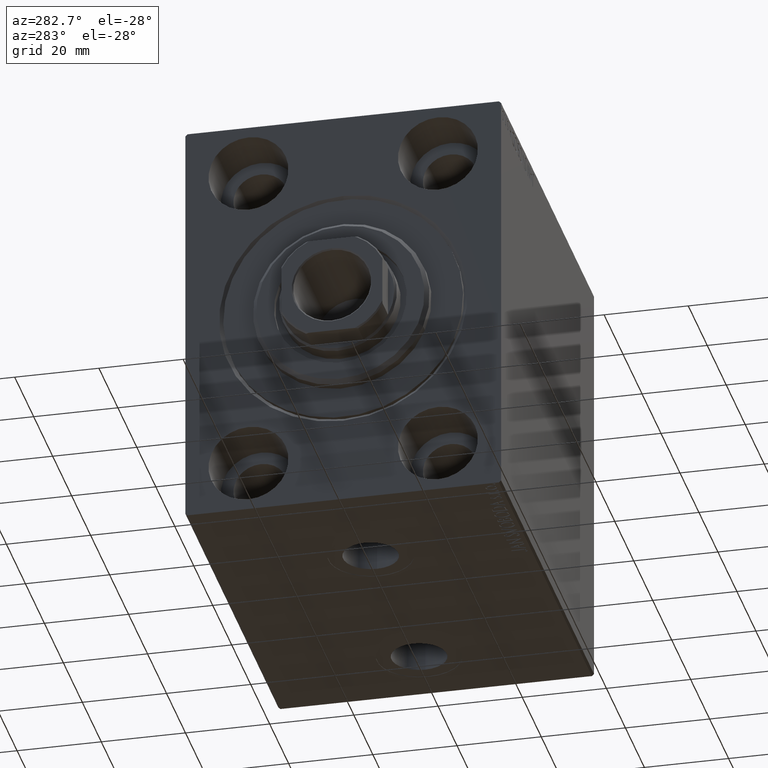
[diagram: clean part render]
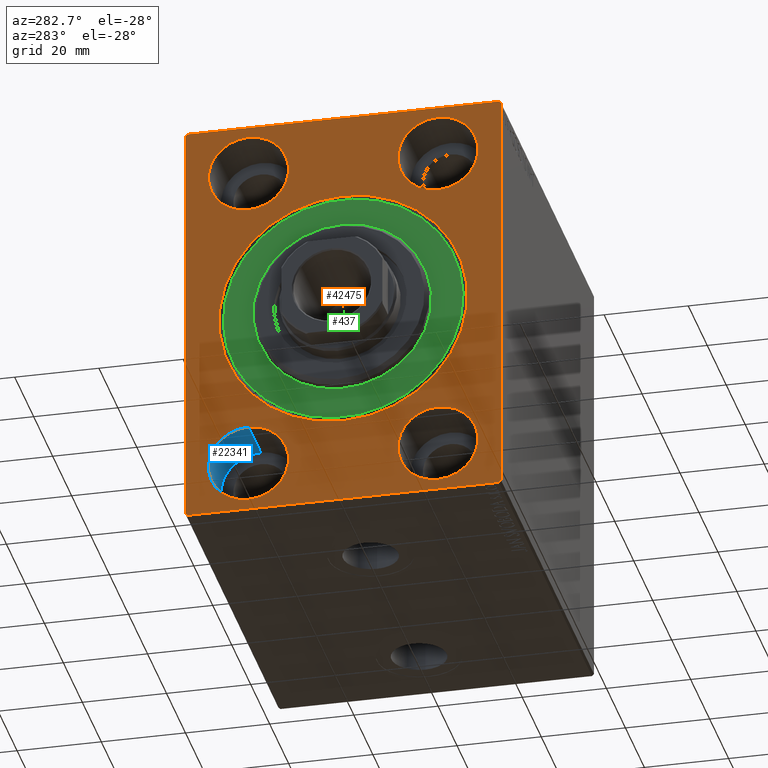
[diagram: same view with three faces highlighted in distinct colors, each labeled with its STEP entity id]
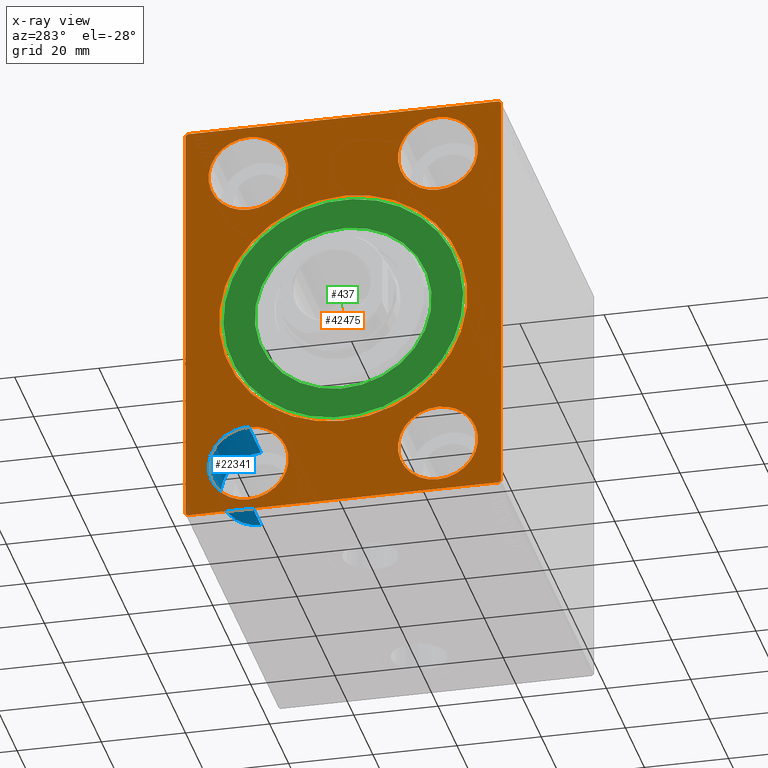
[diagram: x-ray of the same camera — body ghosted, the three highlighted faces saturated]
A machine part, auxiliary view with three faces highlighted in distinct colors.
The next image is the same camera in x-ray (body ghosted, the three faces saturated) — at least one of them is partly hidden behind the body in this view.
Their STEP definitions:

[orange] entity #42475 — the highlighted planar face has unit normal (1, 0, 0).
#120 = CARTESIAN_POINT ( 'NONE',  ( 0.000000000000000000, 22.49999999999999645, -37.99999999999999289 ) ) ;
#312 = CARTESIAN_POINT ( 'NONE',  ( 0.000000000000000000, -22.50000000000000711, -28.49999999999998934 ) ) ;
#333 = DIRECTION ( 'NONE',  ( 0.000000000000000000, 0.000000000000000000, 1.000000000000000000 ) ) ;
#1075 = VECTOR ( 'NONE', #27338, 1000.000000000000114 ) ;
#1259 = ORIENTED_EDGE ( 'NONE', *, *, #1952, .F. ) ;
#1359 = CARTESIAN_POINT ( 'NONE',  ( 0.000000000000000000, 37.50000000000000711, -49.50000000000000000 ) ) ;
#1576 = LINE ( 'NONE', #1359, #26715 ) ;
#1767 = CARTESIAN_POINT ( 'NONE',  ( 0.000000000000000000, 22.50000000000000355, 28.49999999999998934 ) ) ;
#1822 = CARTESIAN_POINT ( 'NONE',  ( 0.000000000000000000, 37.49999999999999289, 50.00000000000000711 ) ) ;
#1952 = EDGE_CURVE ( 'NONE', #9146, #26098, #41481, .T. ) ;
#2145 = CARTESIAN_POINT ( 'NONE',  ( 0.000000000000000000, 36.99999999999999289, 50.00000000000000711 ) ) ;
#2150 = EDGE_CURVE ( 'NONE', #34327, #4467, #23458, .T. ) ;
#2681 = EDGE_LOOP ( 'NONE', ( #5941, #11189 ) ) ;
#2776 = EDGE_CURVE ( 'NONE', #26098, #9146, #19570, .T. ) ;
#3768 = DIRECTION ( 'NONE',  ( -1.000000000000000000, 0.000000000000000000, 0.000000000000000000 ) ) ;
#3863 = AXIS2_PLACEMENT_3D ( 'NONE', #16518, #20417, #38059 ) ;
#4467 = VERTEX_POINT ( 'NONE', #15469 ) ;
#4600 = DIRECTION ( 'NONE',  ( -1.000000000000000000, 0.000000000000000000, 0.000000000000000000 ) ) ;
#4722 = DIRECTION ( 'NONE',  ( -0.000000000000000000, 0.7071067811865425767, -0.7071067811865525687 ) ) ;
#4834 = DIRECTION ( 'NONE',  ( 0.000000000000000000, 0.000000000000000000, 1.000000000000000000 ) ) ;
#4954 = CARTESIAN_POINT ( 'NONE',  ( 0.000000000000000000, 36.99999999999999289, 50.00000000000000711 ) ) ;
#5848 = CARTESIAN_POINT ( 'NONE',  ( 0.000000000000000000, 0.000000000000000000, 29.50000000000001421 ) ) ;
#5892 = EDGE_LOOP ( 'NONE', ( #13267, #36689, #17421, #39617, #14646, #41912, #6255, #43838 ) ) ;
#5941 = ORIENTED_EDGE ( 'NONE', *, *, #37832, .F. ) ;
#6085 = DIRECTION ( 'NONE',  ( 0.000000000000000000, 0.000000000000000000, -1.000000000000000000 ) ) ;
#6255 = ORIENTED_EDGE ( 'NONE', *, *, #41391, .F. ) ;
#6386 = EDGE_LOOP ( 'NONE', ( #40128, #34374 ) ) ;
#6780 = DIRECTION ( 'NONE',  ( -1.000000000000000000, 0.000000000000000000, 0.000000000000000000 ) ) ;
#7229 = EDGE_CURVE ( 'NONE', #37766, #26573, #45214, .T. ) ;
#7263 = DIRECTION ( 'NONE',  ( 0.000000000000000000, 0.000000000000000000, -1.000000000000000000 ) ) ;
#7398 = EDGE_CURVE ( 'NONE', #16985, #15459, #34753, .T. ) ;
#7575 = CIRCLE ( 'NONE', #31771, 9.500000000000001776 ) ;
#7879 = ORIENTED_EDGE ( 'NONE', *, *, #2776, .F. ) ;
#7939 = CARTESIAN_POINT ( 'NONE',  ( 0.000000000000000000, 0.000000000000000000, 0.000000000000000000 ) ) ;
#8140 = CARTESIAN_POINT ( 'NONE',  ( 0.000000000000000000, -37.50000000000000711, -50.00000000000000711 ) ) ;
#8429 = DIRECTION ( 'NONE',  ( 0.000000000000000000, -0.7071067811865474617, -0.7071067811865474617 ) ) ;
#9087 = VECTOR ( 'NONE', #25814, 1000.000000000000000 ) ;
#9146 = VERTEX_POINT ( 'NONE', #36755 ) ;
#9480 = EDGE_CURVE ( 'NONE', #13704, #20352, #37016, .T. ) ;
#9523 = LINE ( 'NONE', #37509, #21643 ) ;
#9801 = FACE_BOUND ( 'NONE', #12958, .T. ) ;
#9807 = CARTESIAN_POINT ( 'NONE',  ( 0.000000000000000000, 0.000000000000000000, 0.000000000000000000 ) ) ;
#10303 = VERTEX_POINT ( 'NONE', #2145 ) ;
#10860 = DIRECTION ( 'NONE',  ( 0.000000000000000000, 0.000000000000000000, 1.000000000000000000 ) ) ;
#11106 = CARTESIAN_POINT ( 'NONE',  ( 0.000000000000000000, -37.50000000000000711, -49.49999999999999289 ) ) ;
#11189 = ORIENTED_EDGE ( 'NONE', *, *, #39106, .F. ) ;
#11815 = LINE ( 'NONE', #8140, #9087 ) ;
#12367 = EDGE_CURVE ( 'NONE', #15459, #16985, #42930, .T. ) ;
#12572 = EDGE_CURVE ( 'NONE', #35478, #29178, #44306, .T. ) ;
#12958 = EDGE_LOOP ( 'NONE', ( #27748, #28146 ) ) ;
#13076 = VERTEX_POINT ( 'NONE', #33943 ) ;
#13267 = ORIENTED_EDGE ( 'NONE', *, *, #42854, .F. ) ;
#13490 = DIRECTION ( 'NONE',  ( 1.000000000000000000, 0.000000000000000000, 0.000000000000000000 ) ) ;
#13531 = AXIS2_PLACEMENT_3D ( 'NONE', #37794, #13490, #41454 ) ;
#13704 = VERTEX_POINT ( 'NONE', #312 ) ;
#13958 = CARTESIAN_POINT ( 'NONE',  ( 0.000000000000000000, 37.00000000000000711, -50.00000000000000000 ) ) ;
#14627 = DIRECTION ( 'NONE',  ( 0.000000000000000000, 0.000000000000000000, -1.000000000000000000 ) ) ;
#14646 = ORIENTED_EDGE ( 'NONE', *, *, #2150, .F. ) ;
#15053 = VERTEX_POINT ( 'NONE', #13958 ) ;
#15459 = VERTEX_POINT ( 'NONE', #36932 ) ;
#15469 = CARTESIAN_POINT ( 'NONE',  ( 0.000000000000000000, 37.49999999999999289, 49.50000000000000000 ) ) ;
#15596 = AXIS2_PLACEMENT_3D ( 'NONE', #16906, #6780, #26985 ) ;
#16030 = DIRECTION ( 'NONE',  ( -1.000000000000000000, 0.000000000000000000, 0.000000000000000000 ) ) ;
#16183 = DIRECTION ( 'NONE',  ( -0.000000000000000000, -0.7071067811865474617, 0.7071067811865474617 ) ) ;
#16289 = CARTESIAN_POINT ( 'NONE',  ( 0.000000000000000000, -37.50000000000000711, 49.49999999999997868 ) ) ;
#16342 = CIRCLE ( 'NONE', #15596, 9.500000000000001776 ) ;
#16518 = CARTESIAN_POINT ( 'NONE',  ( 0.000000000000000000, 22.50000000000000355, 37.99999999999999289 ) ) ;
#16709 = FACE_BOUND ( 'NONE', #6386, .T. ) ;
#16906 = CARTESIAN_POINT ( 'NONE',  ( 0.000000000000000000, -22.50000000000000711, -37.99999999999999289 ) ) ;
#16985 = VERTEX_POINT ( 'NONE', #25728 ) ;
#17421 = ORIENTED_EDGE ( 'NONE', *, *, #21247, .F. ) ;
#17539 = DIRECTION ( 'NONE',  ( -1.000000000000000000, 0.000000000000000000, 0.000000000000000000 ) ) ;
#18515 = CARTESIAN_POINT ( 'NONE',  ( 0.000000000000000000, 3.612708057484693970E-15, -29.50000000000001421 ) ) ;
#19238 = DIRECTION ( 'NONE',  ( 0.000000000000000000, 0.000000000000000000, 1.000000000000000000 ) ) ;
#19432 = EDGE_CURVE ( 'NONE', #13076, #24964, #26726, .T. ) ;
#19570 = CIRCLE ( 'NONE', #27618, 9.500000000000001776 ) ;
#20352 = VERTEX_POINT ( 'NONE', #25553 ) ;
#20386 = DIRECTION ( 'NONE',  ( 1.000000000000000000, 0.000000000000000000, 0.000000000000000000 ) ) ;
#20417 = DIRECTION ( 'NONE',  ( -1.000000000000000000, 0.000000000000000000, 0.000000000000000000 ) ) ;
#21198 = CARTESIAN_POINT ( 'NONE',  ( 0.000000000000000000, 22.49999999999999645, -37.99999999999999289 ) ) ;
#21247 = EDGE_CURVE ( 'NONE', #10303, #26573, #43313, .T. ) ;
#21643 = VECTOR ( 'NONE', #6085, 1000.000000000000000 ) ;
#21789 = VECTOR ( 'NONE', #16183, 1000.000000000000114 ) ;
#22289 = CARTESIAN_POINT ( 'NONE',  ( 0.000000000000000000, 22.49999999999999645, -47.49999999999999289 ) ) ;
#22376 = CARTESIAN_POINT ( 'NONE',  ( 0.000000000000000000, -36.99999999999999289, -50.00000000000000711 ) ) ;
#22998 = DIRECTION ( 'NONE',  ( 0.000000000000000000, -1.387778780781445676E-16, 1.000000000000000000 ) ) ;
#23174 = AXIS2_PLACEMENT_3D ( 'NONE', #36426, #16030, #19238 ) ;
#23458 = LINE ( 'NONE', #27569, #40023 ) ;
#23646 = CIRCLE ( 'NONE', #3863, 9.500000000000001776 ) ;
#24261 = FACE_BOUND ( 'NONE', #41826, .T. ) ;
#24501 = DIRECTION ( 'NONE',  ( 1.000000000000000000, 0.000000000000000000, 0.000000000000000000 ) ) ;
#24594 = CARTESIAN_POINT ( 'NONE',  ( 0.000000000000000000, 22.50000000000000355, 47.49999999999999289 ) ) ;
#24940 = CARTESIAN_POINT ( 'NONE',  ( 0.000000000000000000, -36.99999999999999289, 49.99999999999999289 ) ) ;
#24964 = VERTEX_POINT ( 'NONE', #11106 ) ;
#25025 = DIRECTION ( 'NONE',  ( 0.000000000000000000, 0.000000000000000000, 1.000000000000000000 ) ) ;
#25263 = ORIENTED_EDGE ( 'NONE', *, *, #35441, .T. ) ;
#25382 = LINE ( 'NONE', #4954, #38438 ) ;
#25489 = VECTOR ( 'NONE', #43091, 1000.000000000000000 ) ;
#25553 = CARTESIAN_POINT ( 'NONE',  ( 0.000000000000000000, -22.50000000000000711, -47.49999999999999289 ) ) ;
#25728 = CARTESIAN_POINT ( 'NONE',  ( 0.000000000000000000, -22.49999999999999645, 47.49999999999999289 ) ) ;
#25814 = DIRECTION ( 'NONE',  ( 0.000000000000000000, 1.000000000000000000, 9.251858538542970348E-17 ) ) ;
#26009 = AXIS2_PLACEMENT_3D ( 'NONE', #9807, #20386, #7263 ) ;
#26098 = VERTEX_POINT ( 'NONE', #22289 ) ;
#26573 = VERTEX_POINT ( 'NONE', #24940 ) ;
#26715 = VECTOR ( 'NONE', #8429, 1000.000000000000114 ) ;
#26726 = LINE ( 'NONE', #22376, #21789 ) ;
#26985 = DIRECTION ( 'NONE',  ( 0.000000000000000000, 0.000000000000000000, 1.000000000000000000 ) ) ;
#27245 = FACE_BOUND ( 'NONE', #2681, .T. ) ;
#27338 = DIRECTION ( 'NONE',  ( -0.000000000000000000, 0.7071067811865474617, 0.7071067811865474617 ) ) ;
#27569 = CARTESIAN_POINT ( 'NONE',  ( 0.000000000000000000, 37.50000000000000711, -50.00000000000000000 ) ) ;
#27618 = AXIS2_PLACEMENT_3D ( 'NONE', #120, #3768, #10860 ) ;
#27748 = ORIENTED_EDGE ( 'NONE', *, *, #9480, .F. ) ;
#28146 = ORIENTED_EDGE ( 'NONE', *, *, #36412, .F. ) ;
#28206 = AXIS2_PLACEMENT_3D ( 'NONE', #38297, #34396, #31631 ) ;
#29178 = VERTEX_POINT ( 'NONE', #5848 ) ;
#29580 = VERTEX_POINT ( 'NONE', #24594 ) ;
#30122 = AXIS2_PLACEMENT_3D ( 'NONE', #7939, #24501, #14627 ) ;
#31240 = AXIS2_PLACEMENT_3D ( 'NONE', #21198, #17539, #333 ) ;
#31631 = DIRECTION ( 'NONE',  ( 0.000000000000000000, 0.000000000000000000, 1.000000000000000000 ) ) ;
#31771 = AXIS2_PLACEMENT_3D ( 'NONE', #42902, #4600, #4834 ) ;
#33943 = CARTESIAN_POINT ( 'NONE',  ( 0.000000000000000000, -36.99999999999999289, -50.00000000000000711 ) ) ;
#34108 = FACE_BOUND ( 'NONE', #43220, .T. ) ;
#34327 = VERTEX_POINT ( 'NONE', #41283 ) ;
#34374 = ORIENTED_EDGE ( 'NONE', *, *, #12367, .F. ) ;
#34396 = DIRECTION ( 'NONE',  ( -1.000000000000000000, 0.000000000000000000, 0.000000000000000000 ) ) ;
#34753 = CIRCLE ( 'NONE', #40606, 9.500000000000001776 ) ;
#35331 = CARTESIAN_POINT ( 'NONE',  ( 0.000000000000000000, -22.49999999999999645, 37.99999999999999289 ) ) ;
#35441 = EDGE_CURVE ( 'NONE', #29178, #35478, #36692, .T. ) ;
#35478 = VERTEX_POINT ( 'NONE', #18515 ) ;
#35527 = VERTEX_POINT ( 'NONE', #1767 ) ;
#36412 = EDGE_CURVE ( 'NONE', #20352, #13704, #16342, .T. ) ;
#36426 = CARTESIAN_POINT ( 'NONE',  ( 0.000000000000000000, -22.49999999999999645, 37.99999999999999289 ) ) ;
#36689 = ORIENTED_EDGE ( 'NONE', *, *, #7229, .T. ) ;
#36692 = CIRCLE ( 'NONE', #30122, 29.50000000000001421 ) ;
#36755 = CARTESIAN_POINT ( 'NONE',  ( 0.000000000000000000, 22.49999999999999645, -28.49999999999998934 ) ) ;
#36932 = CARTESIAN_POINT ( 'NONE',  ( 0.000000000000000000, -22.49999999999999645, 28.49999999999998934 ) ) ;
#37016 = CIRCLE ( 'NONE', #28206, 9.500000000000001776 ) ;
#37509 = CARTESIAN_POINT ( 'NONE',  ( 0.000000000000000000, -37.50000000000000711, 49.99999999999999289 ) ) ;
#37660 = CARTESIAN_POINT ( 'NONE',  ( 0.000000000000000000, -37.50000000000000711, 49.49999999999997868 ) ) ;
#37766 = VERTEX_POINT ( 'NONE', #16289 ) ;
#37794 = CARTESIAN_POINT ( 'NONE',  ( 0.000000000000000000, 0.000000000000000000, 0.000000000000000000 ) ) ;
#37832 = EDGE_CURVE ( 'NONE', #29580, #35527, #23646, .T. ) ;
#38059 = DIRECTION ( 'NONE',  ( 0.000000000000000000, 0.000000000000000000, 1.000000000000000000 ) ) ;
#38297 = CARTESIAN_POINT ( 'NONE',  ( 0.000000000000000000, -22.50000000000000711, -37.99999999999999289 ) ) ;
#38438 = VECTOR ( 'NONE', #4722, 999.9999999999998863 ) ;
#38740 = ORIENTED_EDGE ( 'NONE', *, *, #12572, .T. ) ;
#39106 = EDGE_CURVE ( 'NONE', #35527, #29580, #7575, .T. ) ;
#39450 = DIRECTION ( 'NONE',  ( -1.000000000000000000, 0.000000000000000000, 0.000000000000000000 ) ) ;
#39617 = ORIENTED_EDGE ( 'NONE', *, *, #42103, .T. ) ;
#40023 = VECTOR ( 'NONE', #22998, 1000.000000000000000 ) ;
#40128 = ORIENTED_EDGE ( 'NONE', *, *, #7398, .F. ) ;
#40606 = AXIS2_PLACEMENT_3D ( 'NONE', #35331, #39450, #25025 ) ;
#41224 = PLANE ( 'NONE',  #13531 ) ;
#41283 = CARTESIAN_POINT ( 'NONE',  ( 0.000000000000000000, 37.50000000000000711, -49.50000000000000000 ) ) ;
#41391 = EDGE_CURVE ( 'NONE', #13076, #15053, #11815, .T. ) ;
#41454 = DIRECTION ( 'NONE',  ( 0.000000000000000000, 0.000000000000000000, -1.000000000000000000 ) ) ;
#41481 = CIRCLE ( 'NONE', #31240, 9.500000000000001776 ) ;
#41826 = EDGE_LOOP ( 'NONE', ( #1259, #7879 ) ) ;
#41872 = EDGE_CURVE ( 'NONE', #34327, #15053, #1576, .T. ) ;
#41912 = ORIENTED_EDGE ( 'NONE', *, *, #41872, .T. ) ;
#42103 = EDGE_CURVE ( 'NONE', #10303, #4467, #25382, .T. ) ;
#42475 = ADVANCED_FACE ( 'NONE', ( #34108, #24261, #16709, #27245, #9801, #45121 ), #41224, .F. ) ;
#42854 = EDGE_CURVE ( 'NONE', #37766, #24964, #9523, .T. ) ;
#42902 = CARTESIAN_POINT ( 'NONE',  ( 0.000000000000000000, 22.50000000000000355, 37.99999999999999289 ) ) ;
#42930 = CIRCLE ( 'NONE', #23174, 9.500000000000001776 ) ;
#43091 = DIRECTION ( 'NONE',  ( 0.000000000000000000, -1.000000000000000000, -1.850371707708594316E-16 ) ) ;
#43220 = EDGE_LOOP ( 'NONE', ( #25263, #38740 ) ) ;
#43313 = LINE ( 'NONE', #1822, #25489 ) ;
#43838 = ORIENTED_EDGE ( 'NONE', *, *, #19432, .T. ) ;
#44306 = CIRCLE ( 'NONE', #26009, 29.50000000000001421 ) ;
#45121 = FACE_OUTER_BOUND ( 'NONE', #5892, .T. ) ;
#45214 = LINE ( 'NONE', #37660, #1075 ) ;

[blue] entity #22341 — the highlighted cylindrical surface (partial cylindrical patch) has radius 9.5 mm, axis along (-1, -0, -0).
#283 = DIRECTION ( 'NONE',  ( -1.000000000000000000, -0.000000000000000000, -0.000000000000000000 ) ) ;
#333 = DIRECTION ( 'NONE',  ( 0.000000000000000000, 0.000000000000000000, 1.000000000000000000 ) ) ;
#1952 = EDGE_CURVE ( 'NONE', #9146, #26098, #41481, .T. ) ;
#4143 = DIRECTION ( 'NONE',  ( 0.000000000000000000, 0.000000000000000000, 1.000000000000000000 ) ) ;
#5770 = DIRECTION ( 'NONE',  ( -1.000000000000000000, -0.000000000000000000, -0.000000000000000000 ) ) ;
#7133 = DIRECTION ( 'NONE',  ( 0.000000000000000000, 0.000000000000000000, 1.000000000000000000 ) ) ;
#7247 = EDGE_LOOP ( 'NONE', ( #7335, #21259, #12719, #38871 ) ) ;
#7335 = ORIENTED_EDGE ( 'NONE', *, *, #28246, .F. ) ;
#7557 = CARTESIAN_POINT ( 'NONE',  ( 13.00000000000000000, 22.49999999999999645, -37.99999999999999289 ) ) ;
#8970 = CARTESIAN_POINT ( 'NONE',  ( 13.00000000000000000, 22.49999999999999645, -47.49999999999999289 ) ) ;
#9146 = VERTEX_POINT ( 'NONE', #36755 ) ;
#10126 = AXIS2_PLACEMENT_3D ( 'NONE', #7557, #21570, #4143 ) ;
#10486 = EDGE_CURVE ( 'NONE', #28358, #9146, #29521, .T. ) ;
#10492 = AXIS2_PLACEMENT_3D ( 'NONE', #14036, #32122, #7133 ) ;
#11012 = FACE_OUTER_BOUND ( 'NONE', #7247, .T. ) ;
#12719 = ORIENTED_EDGE ( 'NONE', *, *, #10486, .T. ) ;
#14036 = CARTESIAN_POINT ( 'NONE',  ( 13.00000000000000000, 22.49999999999999645, -37.99999999999999289 ) ) ;
#16790 = VECTOR ( 'NONE', #5770, 1000.000000000000000 ) ;
#17539 = DIRECTION ( 'NONE',  ( -1.000000000000000000, 0.000000000000000000, 0.000000000000000000 ) ) ;
#21198 = CARTESIAN_POINT ( 'NONE',  ( 0.000000000000000000, 22.49999999999999645, -37.99999999999999289 ) ) ;
#21259 = ORIENTED_EDGE ( 'NONE', *, *, #38978, .F. ) ;
#21570 = DIRECTION ( 'NONE',  ( -1.000000000000000000, -0.000000000000000000, -0.000000000000000000 ) ) ;
#22289 = CARTESIAN_POINT ( 'NONE',  ( 0.000000000000000000, 22.49999999999999645, -47.49999999999999289 ) ) ;
#22341 = ADVANCED_FACE ( 'NONE', ( #11012 ), #25014, .F. ) ;
#22375 = VECTOR ( 'NONE', #283, 1000.000000000000000 ) ;
#24977 = VERTEX_POINT ( 'NONE', #32644 ) ;
#25009 = CARTESIAN_POINT ( 'NONE',  ( 13.00000000000000000, 22.49999999999999645, -28.49999999999998934 ) ) ;
#25014 = CYLINDRICAL_SURFACE ( 'NONE', #10126, 9.500000000000001776 ) ;
#26098 = VERTEX_POINT ( 'NONE', #22289 ) ;
#28246 = EDGE_CURVE ( 'NONE', #24977, #26098, #41300, .T. ) ;
#28358 = VERTEX_POINT ( 'NONE', #25009 ) ;
#29521 = LINE ( 'NONE', #42224, #22375 ) ;
#30281 = CIRCLE ( 'NONE', #10492, 9.500000000000001776 ) ;
#31240 = AXIS2_PLACEMENT_3D ( 'NONE', #21198, #17539, #333 ) ;
#32122 = DIRECTION ( 'NONE',  ( -1.000000000000000000, 0.000000000000000000, 0.000000000000000000 ) ) ;
#32644 = CARTESIAN_POINT ( 'NONE',  ( 13.00000000000000000, 22.49999999999999645, -47.49999999999999289 ) ) ;
#36755 = CARTESIAN_POINT ( 'NONE',  ( 0.000000000000000000, 22.49999999999999645, -28.49999999999998934 ) ) ;
#38871 = ORIENTED_EDGE ( 'NONE', *, *, #1952, .T. ) ;
#38978 = EDGE_CURVE ( 'NONE', #28358, #24977, #30281, .T. ) ;
#41300 = LINE ( 'NONE', #8970, #16790 ) ;
#41481 = CIRCLE ( 'NONE', #31240, 9.500000000000001776 ) ;
#42224 = CARTESIAN_POINT ( 'NONE',  ( 13.00000000000000000, 22.49999999999999645, -28.49999999999998934 ) ) ;

[green] entity #437 — the highlighted planar face has unit normal (1, 0, -0).
#100 = DIRECTION ( 'NONE',  ( -1.000000000000000000, 0.000000000000000000, 0.000000000000000000 ) ) ;
#424 = CIRCLE ( 'NONE', #28984, 28.50000000000000000 ) ;
#437 = ADVANCED_FACE ( 'NONE', ( #44963, #41297 ), #33955, .F. ) ;
#1634 = CARTESIAN_POINT ( 'NONE',  ( 0.000000000000000000, 0.000000000000000000, 21.00000000000000000 ) ) ;
#2532 = DIRECTION ( 'NONE',  ( -1.000000000000000000, 0.000000000000000000, 0.000000000000000000 ) ) ;
#3496 = EDGE_LOOP ( 'NONE', ( #26200, #25413 ) ) ;
#3608 = CARTESIAN_POINT ( 'NONE',  ( 0.000000000000000000, 3.490243377569956456E-15, 28.50000000000000000 ) ) ;
#3787 = VERTEX_POINT ( 'NONE', #34557 ) ;
#6663 = CARTESIAN_POINT ( 'NONE',  ( 0.000000000000000000, 0.000000000000000000, 0.000000000000000000 ) ) ;
#6843 = EDGE_CURVE ( 'NONE', #44378, #39145, #16437, .T. ) ;
#9426 = DIRECTION ( 'NONE',  ( 0.000000000000000000, 0.000000000000000000, 1.000000000000000000 ) ) ;
#9611 = DIRECTION ( 'NONE',  ( 0.000000000000000000, 0.000000000000000000, 1.000000000000000000 ) ) ;
#10454 = ORIENTED_EDGE ( 'NONE', *, *, #37690, .F. ) ;
#11936 = CIRCLE ( 'NONE', #30247, 21.00000000000000000 ) ;
#13184 = DIRECTION ( 'NONE',  ( 0.000000000000000000, 0.000000000000000000, -1.000000000000000000 ) ) ;
#14463 = EDGE_CURVE ( 'NONE', #39145, #44378, #424, .T. ) ;
#15467 = VERTEX_POINT ( 'NONE', #1634 ) ;
#16398 = CARTESIAN_POINT ( 'NONE',  ( 0.000000000000000000, 0.000000000000000000, 0.000000000000000000 ) ) ;
#16437 = CIRCLE ( 'NONE', #36944, 28.50000000000000000 ) ;
#16664 = CARTESIAN_POINT ( 'NONE',  ( 0.000000000000000000, 0.000000000000000000, 0.000000000000000000 ) ) ;
#16864 = EDGE_CURVE ( 'NONE', #15467, #3787, #29048, .T. ) ;
#18111 = ORIENTED_EDGE ( 'NONE', *, *, #16864, .F. ) ;
#25413 = ORIENTED_EDGE ( 'NONE', *, *, #14463, .F. ) ;
#26200 = ORIENTED_EDGE ( 'NONE', *, *, #6843, .F. ) ;
#26974 = DIRECTION ( 'NONE',  ( 0.000000000000000000, 0.000000000000000000, -1.000000000000000000 ) ) ;
#28984 = AXIS2_PLACEMENT_3D ( 'NONE', #44804, #100, #40498 ) ;
#29048 = CIRCLE ( 'NONE', #36338, 21.00000000000000000 ) ;
#30118 = EDGE_LOOP ( 'NONE', ( #18111, #10454 ) ) ;
#30247 = AXIS2_PLACEMENT_3D ( 'NONE', #16398, #30372, #13184 ) ;
#30372 = DIRECTION ( 'NONE',  ( 1.000000000000000000, -0.000000000000000000, 0.000000000000000000 ) ) ;
#31205 = AXIS2_PLACEMENT_3D ( 'NONE', #6663, #34870, #9426 ) ;
#33451 = CARTESIAN_POINT ( 'NONE',  ( 0.000000000000000000, 0.000000000000000000, -28.50000000000000000 ) ) ;
#33955 = PLANE ( 'NONE',  #31205 ) ;
#34557 = CARTESIAN_POINT ( 'NONE',  ( 0.000000000000000000, 2.571758278209441661E-15, -21.00000000000000000 ) ) ;
#34870 = DIRECTION ( 'NONE',  ( -1.000000000000000000, 0.000000000000000000, 0.000000000000000000 ) ) ;
#36338 = AXIS2_PLACEMENT_3D ( 'NONE', #16664, #41410, #26974 ) ;
#36944 = AXIS2_PLACEMENT_3D ( 'NONE', #43788, #2532, #9611 ) ;
#37690 = EDGE_CURVE ( 'NONE', #3787, #15467, #11936, .T. ) ;
#39145 = VERTEX_POINT ( 'NONE', #3608 ) ;
#40498 = DIRECTION ( 'NONE',  ( 0.000000000000000000, 0.000000000000000000, 1.000000000000000000 ) ) ;
#41297 = FACE_OUTER_BOUND ( 'NONE', #3496, .T. ) ;
#41410 = DIRECTION ( 'NONE',  ( 1.000000000000000000, -0.000000000000000000, 0.000000000000000000 ) ) ;
#43788 = CARTESIAN_POINT ( 'NONE',  ( 0.000000000000000000, 0.000000000000000000, 0.000000000000000000 ) ) ;
#44378 = VERTEX_POINT ( 'NONE', #33451 ) ;
#44804 = CARTESIAN_POINT ( 'NONE',  ( 0.000000000000000000, 0.000000000000000000, 0.000000000000000000 ) ) ;
#44963 = FACE_BOUND ( 'NONE', #30118, .T. ) ;